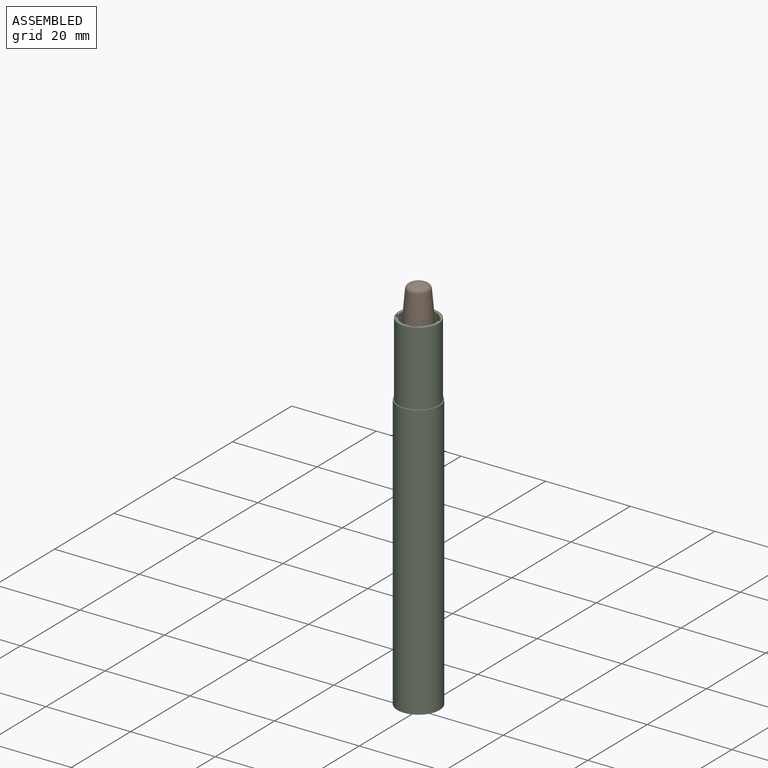
[diagram: assembled view]
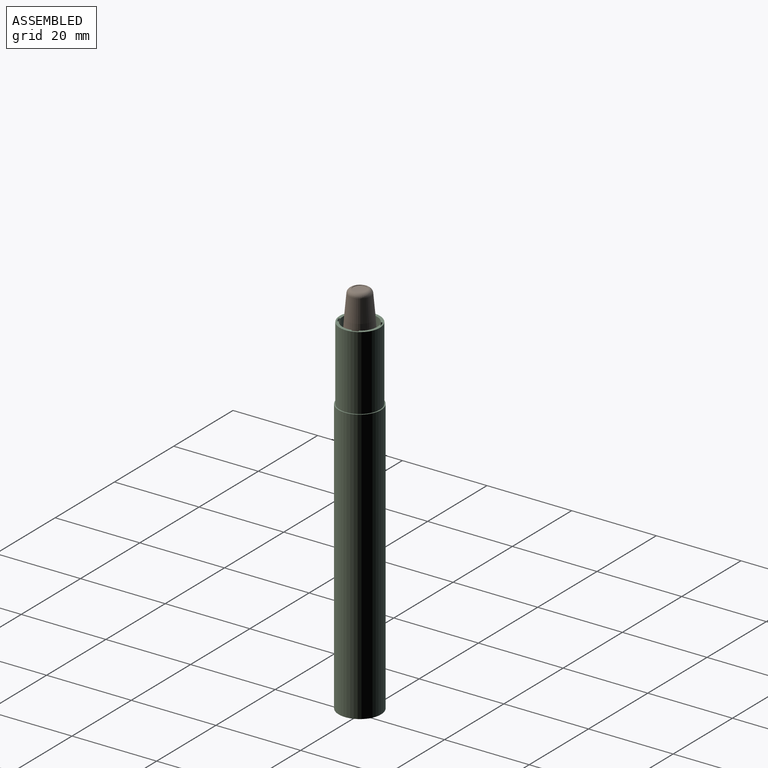
[diagram: assembled view, second angle]
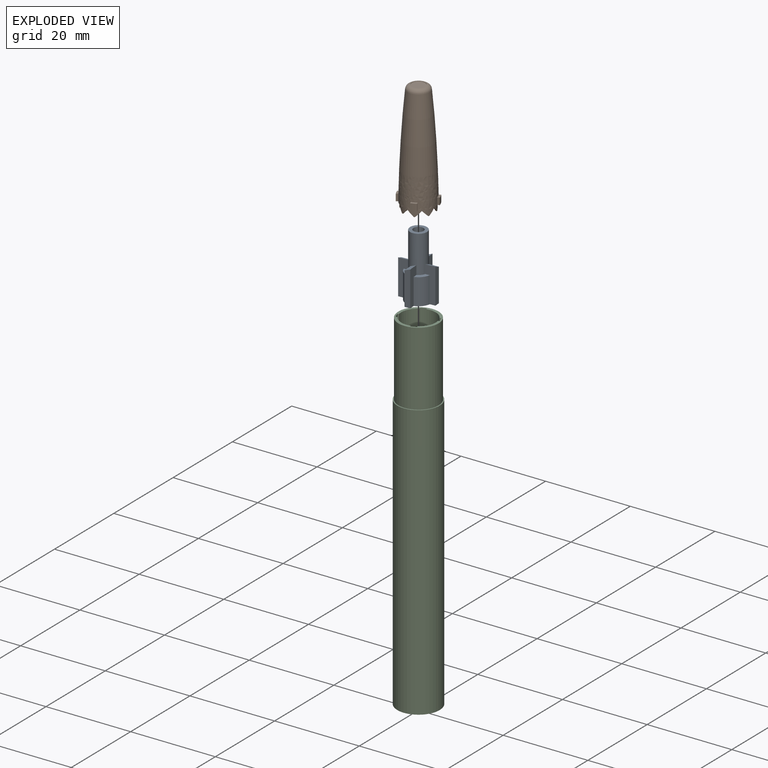
[diagram: exploded view]
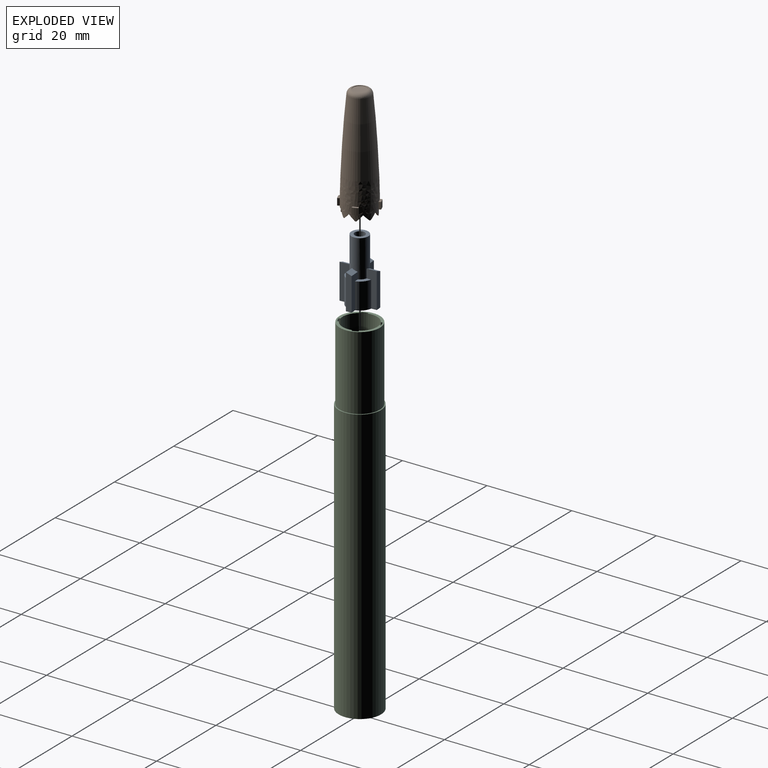
[diagram: exploded view, second angle]
ASSEMBLY  parts=3 mates=3
PART A: 28 faces, bbox 8.4x8.4x15 mm
  f0: cylinder r=3mm len=6.2mm, axis (0,0,-1), area 21.1mm2, adj f3,f9,f13,f21
  f1: cylinder r=3mm len=6.2mm, axis (0,0,-1), area 21.1mm2, adj f4,f9,f12,f19
  f2: cylinder r=3mm len=6.2mm, axis (0,0,-1), area 21.1mm2, adj f5,f9,f15,f20
  f3: plane 2.28x2.28mm, normal (0,0,1), area 2.6mm2, adj f0,f6,f13,f21
  f4: plane 2.28x2.28mm, normal (0,0,1), area 2.6mm2, adj f1,f6,f12,f19
  f5: plane 2.28x2.28mm, normal (0,0,1), area 2.6mm2, adj f2,f6,f15,f20
  f6: cylinder r=2mm len=8.8mm, axis (0,0,-1), area 100.8mm2, adj f3,f4,f5,f8,f10,f12,f13,f15
  f7: cylinder r=3mm len=6.2mm, axis (0,0,-1), area 21.1mm2, adj f8,f9,f16,f18
  f8: plane 2.28x2.28mm, normal (0,0,1), area 2.6mm2, adj f6,f7,f16,f18
  f9: plane 8.4x8.4mm, normal (0,0,-1), area 30.1mm2, adj f0,f1,f2,f7,f11,f12,f13,f14
  f10: plane 4x4mm, normal (0,0,1), area 8mm2, adj f6,f27
  f11: plane 8.3x1.3mm, normal (1,0,0), area 10.5mm2, adj f9,f12,f13,f26
  f12: plane 7.8x2.31mm, normal (0,1,0), area 11.6mm2, adj f1,f4,f6,f9,f11,f26
  f13: plane 8.3x2.31mm, normal (0,-1,0), area 12.7mm2, adj f0,f3,f6,f9,f11,f26
  f14: plane 8.3x1.3mm, normal (-1,0,0), area 10.5mm2, adj f9,f15,f16,f25
  f15: plane 8.3x2.31mm, normal (0,-1,0), area 12.7mm2, adj f2,f5,f6,f9,f14,f25
  f16: plane 7.8x2.31mm, normal (0,1,0), area 11.6mm2, adj f6,f7,f8,f9,f14,f25
  f17: plane 8.3x1.3mm, normal (0,1,0), area 10.5mm2, adj f9,f18,f19,f24
  f18: plane 7.8x2.31mm, normal (-1,0,0), area 11.6mm2, adj f6,f7,f8,f9,f17,f24
  f19: plane 8.3x2.31mm, normal (1,0,0), area 12.7mm2, adj f1,f4,f6,f9,f17,f24
  f20: plane 7.8x2.31mm, normal (-1,0,0), area 11.6mm2, adj f2,f5,f6,f9,f22,f23
  f21: plane 8.3x2.31mm, normal (1,0,0), area 12.7mm2, adj f0,f3,f6,f9,f22,f23
  f22: plane 8.3x1.3mm, normal (0,-1,0), area 10.5mm2, adj f9,f20,f21,f23
  f23: plane 2.31x1.3mm, normal (-0.36,0,0.93), area 3.1mm2, adj f6,f20,f21,f22
  f24: plane 2.31x1.3mm, normal (-0.36,0,0.93), area 3.1mm2, adj f6,f17,f18,f19
  f25: plane 2.31x1.3mm, normal (0,0.36,0.93), area 3.1mm2, adj f6,f14,f15,f16
  f26: plane 2.31x1.3mm, normal (0,0.36,0.93), area 3.1mm2, adj f6,f11,f12,f13
  f27: cylinder r=1.2mm len=15mm, axis (0,0,1), area 113.1mm2, adj f9,f10
PART B: 56 faces, bbox 8.6x8.6x26.6 mm
  f0: plane 7.2x7.2mm, normal (0,0,-1), area 4.4mm2, adj f9,f30,f52,f53,f54,f55
  f1: cylinder r=3.7mm len=7.4mm, axis (0,0,-1), area 23.4mm2, adj f2,f3,f4,f5,f6,f7,f8,f10
  f2: plane 0.32x0.23mm, normal (0,0,1), area 0mm2, adj f1,f9,f34,f48
  f3: plane 0.32x0.23mm, normal (0,0,1), area 0mm2, adj f1,f9,f45,f47
  f4: plane 0.32x0.23mm, normal (0,0,1), area 0mm2, adj f1,f9,f43,f46
  f5: plane 0.32x0.23mm, normal (0,0,1), area 0mm2, adj f1,f9,f41,f44
  f6: plane 0.32x0.23mm, normal (0,0,1), area 0mm2, adj f1,f9,f39,f42
  f7: plane 0.32x0.23mm, normal (0,0,1), area 0mm2, adj f1,f9,f37,f40
  f8: plane 0.32x0.23mm, normal (0,0,1), area 0mm2, adj f1,f9,f36,f38
  f9: cylinder r=3.4mm len=6.8mm, axis (0,0,-1), area 26.9mm2, adj f0,f2,f3,f4,f5,f6,f7,f8
  f10: plane 0.32x0.23mm, normal (0,0,1), area 0mm2, adj f1,f9,f33,f35
  f11: revolved ~24.1x7.8mm, area 512.1mm2, adj f12,f13,f14,f15,f17,f18,f19,f21
  f12: plane 8.57x8.57mm, normal (0,0,1), area 7.5mm2, adj f1,f11,f14,f15,f16,f18,f19,f20
  f13: torus R=1.6mm, axis (0,0,1), area 20.4mm2, adj f11,f49
  f14: plane 1.6x0.5mm, normal (0.23,-0.97,0), area 0.8mm2, adj f11,f12,f16,f17
  f15: plane 1.6x0.44mm, normal (-0.53,0.85,0), area 0.8mm2, adj f11,f12,f16,f17
  f16: cylinder r=4.4mm len=1.6mm, axis (0,0,1), area 2.3mm2, adj f12,f14,f15,f17
  f17: plane 1.45x0.99mm, normal (0,0,-1), area 0.7mm2, adj f11,f14,f15,f16
  f18: plane 1.6x0.5mm, normal (0.97,0.23,0), area 0.8mm2, adj f11,f12,f20,f21
  f19: plane 1.6x0.44mm, normal (-0.85,-0.53,0), area 0.8mm2, adj f11,f12,f20,f21
  f20: cylinder r=4.4mm len=1.6mm, axis (0,0,1), area 2.3mm2, adj f12,f18,f19,f21
  f21: plane 1.43x0.98mm, normal (0,0,-1), area 0.7mm2, adj f11,f18,f19,f20
  f22: plane 1.6x0.5mm, normal (-0.97,-0.23,0), area 0.8mm2, adj f11,f12,f24,f25
  f23: plane 1.6x0.44mm, normal (0.85,0.53,0), area 0.8mm2, adj f11,f12,f24,f25
  f24: cylinder r=4.4mm len=1.6mm, axis (0,0,1), area 2.3mm2, adj f12,f22,f23,f25
  f25: plane 1.43x0.98mm, normal (0,0,-1), area 0.7mm2, adj f11,f22,f23,f24
  f26: plane 1.6x0.5mm, normal (-0.23,0.97,0), area 0.8mm2, adj f11,f12,f28,f29
  f27: plane 1.6x0.44mm, normal (0.53,-0.85,0), area 0.8mm2, adj f11,f12,f28,f29
  f28: cylinder r=4.4mm len=1.6mm, axis (0,0,1), area 2.3mm2, adj f12,f26,f27,f29
  f29: plane 1.45x0.99mm, normal (0,0,-1), area 0.7mm2, adj f11,f26,f27,f28
  f30: revolved ~23.77x7.2mm, area 465.1mm2, adj f0,f32,f52,f53,f54,f55
  f31: plane 3.21x3.21mm, normal (0,0,1), area 8.1mm2, adj f32
  f32: torus R=1.6mm, axis (0,0,1), area 13.1mm2, adj f30,f31
  f33: plane 1.32x1.32mm, normal (0,0.71,0.71), area 0.6mm2, adj f1,f9,f10,f34
  f34: plane 1.32x1.32mm, normal (0,-0.71,0.71), area 0.6mm2, adj f1,f2,f9,f33
  f35: plane 1.34x1.32mm, normal (0.5,-0.5,0.71), area 0.6mm2, adj f1,f9,f10,f36
  f36: plane 1.34x1.32mm, normal (-0.5,0.5,0.71), area 0.6mm2, adj f1,f8,f9,f35
  f37: plane 1.32x1.32mm, normal (-0.71,0,0.71), area 0.6mm2, adj f1,f7,f9,f38
  f38: plane 1.32x1.32mm, normal (0.71,0,0.71), area 0.6mm2, adj f1,f8,f9,f37
  f39: plane 1.34x1.32mm, normal (-0.5,-0.5,0.71), area 0.6mm2, adj f1,f6,f9,f40
  f40: plane 1.34x1.32mm, normal (0.5,0.5,0.71), area 0.6mm2, adj f1,f7,f9,f39
  f41: plane 1.32x1.32mm, normal (0,-0.71,0.71), area 0.6mm2, adj f1,f5,f9,f42
  f42: plane 1.32x1.32mm, normal (0,0.71,0.71), area 0.6mm2, adj f1,f6,f9,f41
  f43: plane 1.34x1.32mm, normal (0.5,-0.5,0.71), area 0.6mm2, adj f1,f4,f9,f44
  f44: plane 1.34x1.32mm, normal (-0.5,0.5,0.71), area 0.6mm2, adj f1,f5,f9,f43
  f45: plane 1.32x1.32mm, normal (0.71,0,0.71), area 0.6mm2, adj f1,f3,f9,f46
  f46: plane 1.32x1.32mm, normal (-0.71,0,0.71), area 0.6mm2, adj f1,f4,f9,f45
  f47: plane 1.34x1.32mm, normal (-0.5,-0.5,0.71), area 0.6mm2, adj f1,f3,f9,f48
  f48: plane 1.34x1.32mm, normal (0.5,0.5,0.71), area 0.6mm2, adj f1,f2,f9,f47
  f49: cylinder r=1.6mm len=3.21mm, axis (0,0,-1), area 0.5mm2, adj f13,f51
  f50: plane 3.11x3.11mm, normal (0,0,-1), area 7.6mm2, adj f51
  f51: torus R=1.55mm, axis (0,0,-1), area 0.8mm2, adj f49,f50
  f52: cylinder r=3.59mm len=1mm, axis (0,0,-1), area 0.6mm2, adj f0,f30
  f53: cylinder r=3.59mm len=1mm, axis (0,0,-1), area 0.6mm2, adj f0,f30
  f54: cylinder r=3.59mm len=1mm, axis (0,0,-1), area 0.6mm2, adj f0,f30
  f55: cylinder r=3.59mm len=1mm, axis (0,0,-1), area 0.6mm2, adj f0,f30
PART C: 80 faces, bbox 10x10x82.5 mm
  f0: plane 0.35x0.14mm, normal (0,0,-1), area 0mm2, adj f3,f15,f38,f78
  f1: plane 0.35x0.14mm, normal (0,0,-1), area 0mm2, adj f4,f15,f54,f76
  f2: plane 0.35x0.15mm, normal (0,0,-1), area 0mm2, adj f5,f15,f29,f74
  f3: cylinder r=4.07mm len=17.5mm, axis (0,0,-1), area 88.4mm2, adj f0,f10,f11,f63,f64,f69,f73,f78
  f4: cylinder r=4.07mm len=17.5mm, axis (0,0,-1), area 88.4mm2, adj f1,f7,f14,f67,f68,f69,f75,f76
  f5: cylinder r=4.07mm len=17.5mm, axis (0,0,-1), area 88.9mm2, adj f2,f8,f9,f61,f62,f69,f74,f79
  f6: plane 0.35x0.15mm, normal (0,0,-1), area 0mm2, adj f15,f46,f71,f72
  f7: plane 1.26x1.26mm, normal (0,0,1), area 0.2mm2, adj f4,f58,f59,f60
  f8: plane 1.7x0.18mm, normal (0,0,1), area 0.2mm2, adj f5,f29,f31,f32
  f9: plane 1.26x1.26mm, normal (0,0,1), area 0.2mm2, adj f5,f34,f35,f36
  f10: plane 1.7x0.18mm, normal (0,0,1), area 0.2mm2, adj f3,f38,f39,f40
  f11: plane 1.26x1.26mm, normal (0,0,1), area 0.2mm2, adj f3,f42,f43,f44
  f12: plane 1.7x0.18mm, normal (0,0,1), area 0.2mm2, adj f46,f47,f48,f71
  f13: plane 1.26x1.26mm, normal (0,0,1), area 0.2mm2, adj f50,f51,f52,f71
  f14: plane 1.7x0.18mm, normal (0,0,1), area 0.2mm2, adj f4,f54,f55,f56
  f15: cylinder r=4.4mm len=72.42mm, axis (0,0,-1), area 1548.3mm2, adj f0,f1,f2,f6,f20,f25,f26,f28
  f16: cylinder r=4.4mm len=8.8mm, axis (0,0,-1), area 36.6mm2, adj f17,f23,f24,f26,f28
  f17: cylinder r=4.4mm len=8.8mm, axis (0,0,-1), area 16.5mm2, adj f16,f18,f26,f28
  f18: cylinder r=4.4mm len=8.8mm, axis (0,0,-1), area 16.5mm2, adj f17,f19,f26,f28
  f19: cylinder r=4.4mm len=8.8mm, axis (0,0,-1), area 16.5mm2, adj f18,f20,f26,f28
  f20: cylinder r=4.4mm len=8.8mm, axis (0,0,-1), area 16.5mm2, adj f15,f19,f26,f28
  f21: cylinder r=5mm len=65mm, axis (0,0,-1), area 2042mm2, adj f22,f23
  f22: plane 10x10mm, normal (0,0,1), area 7.7mm2, adj f21,f70
  f23: plane 10x10mm, normal (0,0,-1), area 17.7mm2, adj f16,f21
  f24: plane 1.4x0.78mm, normal (0,-1,0), area 0.7mm2, adj f16,f26,f27,f28
  f25: plane 1.4x0.78mm, normal (0,1,0), area 0.7mm2, adj f15,f26,f27,f28
  f26: bspline ~12.5x9.42mm, area 136.8mm2, adj f15,f16,f17,f18,f19,f20,f24,f25
  f27: cylinder r=3.62mm len=12.5mm, axis (0,0,-1), area 68.2mm2, adj f24,f25,f26,f28
  f28: bspline ~12.5x9.42mm, area 136.8mm2, adj f15,f16,f17,f18,f19,f20,f24,f25
  f29: plane 0.6x0.42mm, normal (0,-1,0), area 0.3mm2, adj f2,f8,f15,f30,f32
  f30: plane 1.7x0.9mm, normal (0,-0.47,-0.88), area 0.9mm2, adj f15,f29,f31,f32
  f31: plane 1.5x0.42mm, normal (0,1,0), area 0.6mm2, adj f8,f15,f30,f32,f61
  f32: plane 1.7x1.5mm, normal (1,0,0), area 1.8mm2, adj f8,f29,f30,f31
  f33: plane 1.5x1.5mm, normal (-0.33,-0.33,-0.88), area 0.9mm2, adj f15,f34,f35,f36
  f34: plane 0.6x0.3mm, normal (-0.71,-0.71,0), area 0.3mm2, adj f9,f15,f33,f36,f61
  f35: plane 1.5x0.3mm, normal (0.71,0.71,0), area 0.6mm2, adj f9,f15,f33,f36,f62
  f36: plane 1.5x1.2mm, normal (0.71,-0.71,0), area 1.8mm2, adj f9,f33,f34,f35
  f37: plane 1.7x0.9mm, normal (-0.47,0,-0.88), area 0.9mm2, adj f15,f38,f39,f40
  f38: plane 0.6x0.42mm, normal (-1,0,0), area 0.3mm2, adj f0,f10,f15,f37,f40
  f39: plane 1.5x0.42mm, normal (1,0,0), area 0.6mm2, adj f10,f15,f37,f40,f63
  f40: plane 1.7x1.5mm, normal (0,-1,0), area 1.8mm2, adj f10,f37,f38,f39
  f41: plane 1.5x1.5mm, normal (-0.33,0.33,-0.88), area 0.9mm2, adj f15,f42,f43,f44
  f42: plane 0.6x0.3mm, normal (-0.71,0.71,0), area 0.3mm2, adj f11,f15,f41,f44,f63
  f43: plane 1.5x0.3mm, normal (0.71,-0.71,0), area 0.6mm2, adj f11,f15,f41,f44,f64
  f44: plane 1.5x1.2mm, normal (-0.71,-0.71,0), area 1.8mm2, adj f11,f41,f42,f43
  f45: plane 1.7x0.9mm, normal (0,0.47,-0.88), area 0.9mm2, adj f15,f46,f47,f48
  f46: plane 0.6x0.42mm, normal (0,1,0), area 0.3mm2, adj f6,f12,f15,f45,f48
  f47: plane 1.5x0.42mm, normal (0,-1,0), area 0.6mm2, adj f12,f15,f45,f48,f65
  f48: plane 1.7x1.5mm, normal (-1,0,0), area 1.8mm2, adj f12,f45,f46,f47
  f49: plane 1.5x1.5mm, normal (0.33,0.33,-0.88), area 0.9mm2, adj f15,f50,f51,f52
  f50: plane 0.6x0.3mm, normal (0.71,0.71,0), area 0.3mm2, adj f13,f15,f49,f52,f65
  f51: plane 1.5x0.3mm, normal (-0.71,-0.71,0), area 0.6mm2, adj f13,f15,f49,f52,f66
  f52: plane 1.5x1.2mm, normal (-0.71,0.71,0), area 1.8mm2, adj f13,f49,f50,f51
  f53: plane 1.7x0.9mm, normal (0.47,0,-0.88), area 0.9mm2, adj f15,f54,f55,f56
  f54: plane 0.6x0.42mm, normal (1,0,0), area 0.3mm2, adj f1,f14,f15,f53,f56
  f55: plane 1.5x0.42mm, normal (-1,0,0), area 0.6mm2, adj f14,f15,f53,f56,f67
  f56: plane 1.7x1.5mm, normal (0,1,0), area 1.8mm2, adj f14,f53,f54,f55
  f57: plane 1.5x1.5mm, normal (0.33,-0.33,-0.88), area 0.9mm2, adj f15,f58,f59,f60
  f58: plane 0.6x0.3mm, normal (0.71,-0.71,0), area 0.3mm2, adj f7,f15,f57,f60,f67
  f59: plane 1.5x0.3mm, normal (-0.71,0.71,0), area 0.6mm2, adj f7,f15,f57,f60,f68
  f60: plane 1.5x1.2mm, normal (0.71,0.71,0), area 1.8mm2, adj f7,f57,f58,f59
  f61: plane 1.6x0.9mm, normal (0,0,-1), area 0.5mm2, adj f5,f15,f31,f34
  f62: plane 0.33x0.31mm, normal (0,0,-1), area 0mm2, adj f5,f15,f35,f79
  f63: plane 1.6x0.9mm, normal (0,0,-1), area 0.5mm2, adj f3,f15,f39,f42
  f64: plane 0.31x0.29mm, normal (0,0,-1), area 0mm2, adj f3,f15,f43,f73
  f65: plane 1.6x0.9mm, normal (0,0,-1), area 0.5mm2, adj f15,f47,f50,f71
  f66: plane 0.33x0.31mm, normal (0,0,-1), area 0mm2, adj f15,f51,f71,f77
  f67: plane 1.6x0.9mm, normal (0,0,-1), area 0.5mm2, adj f4,f15,f55,f58
  f68: plane 0.31x0.29mm, normal (0,0,-1), area 0mm2, adj f4,f15,f59,f75
  f69: plane 9.5x9.5mm, normal (0,0,1), area 16.9mm2, adj f3,f4,f5,f15,f70,f71,f72,f73
  f70: cylinder r=4.75mm len=17.5mm, axis (0,0,-1), area 522.3mm2, adj f22,f69
  f71: cylinder r=4.07mm len=17.5mm, axis (0,0,-1), area 88.9mm2, adj f6,f12,f13,f65,f66,f69,f72,f77
  f72: plane 17.5x0.32mm, normal (-0.23,0.97,0), area 5.7mm2, adj f6,f15,f69,f71
  f73: plane 17.5x0.28mm, normal (0.53,-0.85,0), area 5.7mm2, adj f3,f15,f64,f69
  f74: plane 17.5x0.32mm, normal (0.23,-0.97,0), area 5.7mm2, adj f2,f5,f15,f69
  f75: plane 17.5x0.28mm, normal (-0.53,0.85,0), area 5.7mm2, adj f4,f15,f68,f69
  f76: plane 17.5x0.32mm, normal (0.97,0.23,0), area 5.7mm2, adj f1,f4,f15,f69
  f77: plane 17.5x0.28mm, normal (-0.85,-0.53,0), area 5.7mm2, adj f15,f66,f69,f71
  f78: plane 17.5x0.32mm, normal (-0.97,-0.23,0), area 5.7mm2, adj f0,f3,f15,f69
  f79: plane 17.5x0.28mm, normal (0.85,0.53,0), area 5.7mm2, adj f5,f15,f62,f69
PLACE A rot(axis=(0,0,1),4.2deg) t=(0,0,-27.96)mm
PLACE B rot(axis=(0.92,-0.38,0),180deg) t=(0,0,-17.92)mm
PLACE C t=(0,0,-82.5)mm
MATE cylindrical B.f1 <-> C.f3  axis (0,0,1) through (0,0,-17.62)mm
MATE parallel B.f27 <-> C.f78  axis (0.97,0.23,0) through (-0.94,4.04,-17.11)mm
MATE cylindrical A.f0 <-> C.f3  axis (0,0,-1) through (0,0,-12.96)mm
